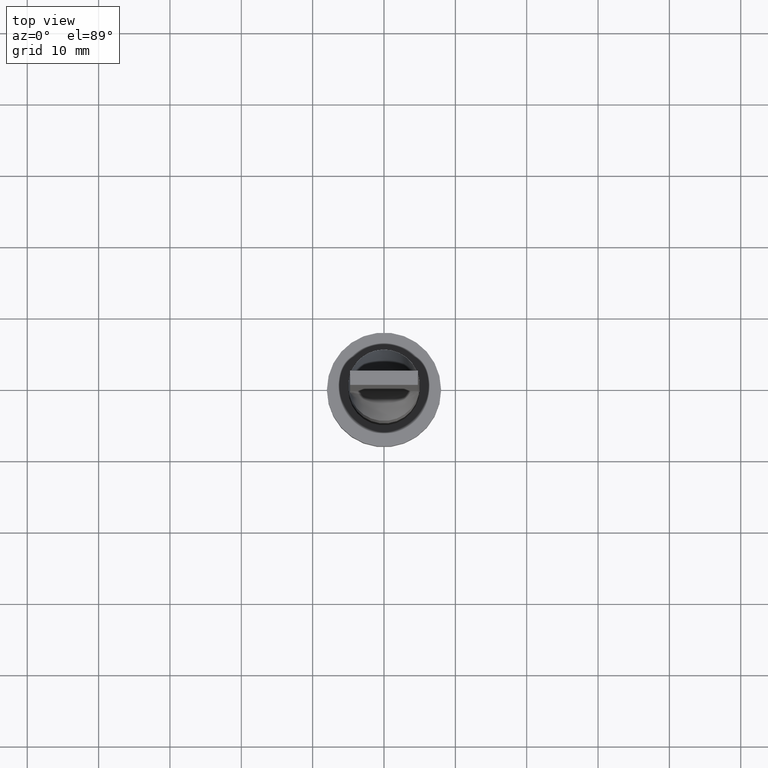
[diagram: clean part render]
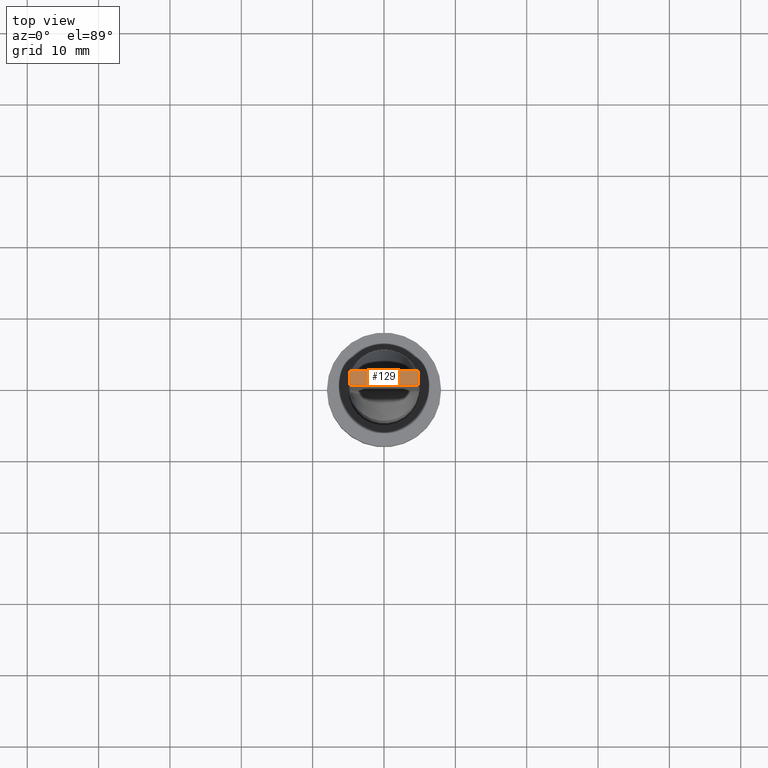
[diagram: same view with one face highlighted and labeled with its STEP entity id]
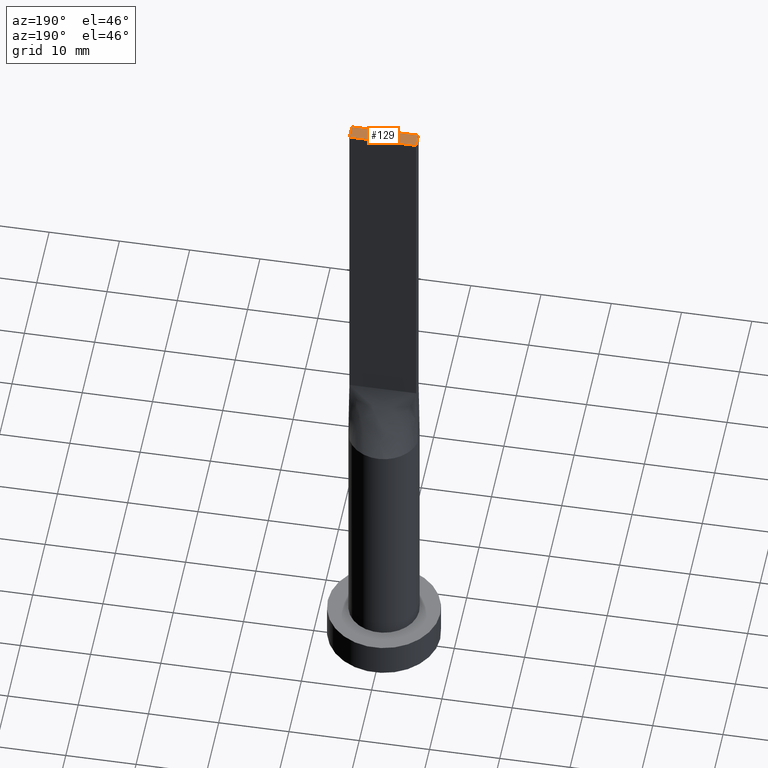
[diagram: same view with one face highlighted and labeled with its STEP entity id]
A machine part, top view. The second image highlights one B-rep face of the part: STEP entity #129.
A second angle (auxiliary view) of the same face is appended — the face is thin or edge-on in the first view.
In plain terms, the highlighted planar face has unit normal (0, 0, 1).
Its self-contained STEP definition (entity closure, byte-faithful):
#15 = DIRECTION ( 'NONE',  ( 0.000000000000000000, -1.000000000000000000, 0.000000000000000000 ) ) ;
#26 = VERTEX_POINT ( 'NONE', #459 ) ;
#32 = EDGE_CURVE ( 'NONE', #26, #68, #359, .T. ) ;
#40 = DIRECTION ( 'NONE',  ( 0.000000000000000000, 0.000000000000000000, 1.000000000000000000 ) ) ;
#45 = ORIENTED_EDGE ( 'NONE', *, *, #82, .T. ) ;
#59 = LINE ( 'NONE', #482, #440 ) ;
#68 = VERTEX_POINT ( 'NONE', #457 ) ;
#78 = VERTEX_POINT ( 'NONE', #181 ) ;
#82 = EDGE_CURVE ( 'NONE', #68, #196, #411, .T. ) ;
#115 = CARTESIAN_POINT ( 'NONE',  ( -4.750000000000000000, -0.9999999999999991118, 100.0000000000000000 ) ) ;
#125 = EDGE_LOOP ( 'NONE', ( #45, #259, #468, #308 ) ) ;
#128 = DIRECTION ( 'NONE',  ( 0.000000000000000000, 1.000000000000000000, 0.000000000000000000 ) ) ;
#129 = ADVANCED_FACE ( 'NONE', ( #462 ), #222, .T. ) ;
#160 = LINE ( 'NONE', #115, #465 ) ;
#177 = CARTESIAN_POINT ( 'NONE',  ( 4.750000000000000000, -0.9999999999999997780, 100.0000000000000000 ) ) ;
#181 = CARTESIAN_POINT ( 'NONE',  ( -4.750000000000000000, -0.9999999999999991118, 100.0000000000000000 ) ) ;
#194 = DIRECTION ( 'NONE',  ( 1.000000000000000000, 0.000000000000000000, -0.000000000000000000 ) ) ;
#196 = VERTEX_POINT ( 'NONE', #597 ) ;
#222 = PLANE ( 'NONE',  #511 ) ;
#259 = ORIENTED_EDGE ( 'NONE', *, *, #353, .T. ) ;
#277 = EDGE_CURVE ( 'NONE', #78, #26, #160, .T. ) ;
#285 = DIRECTION ( 'NONE',  ( -1.000000000000000000, 0.000000000000000000, 0.000000000000000000 ) ) ;
#303 = DIRECTION ( 'NONE',  ( 1.000000000000000000, -6.847592668329501559E-17, 0.000000000000000000 ) ) ;
#308 = ORIENTED_EDGE ( 'NONE', *, *, #32, .T. ) ;
#340 = VECTOR ( 'NONE', #128, 1000.000000000000000 ) ;
#353 = EDGE_CURVE ( 'NONE', #196, #78, #59, .T. ) ;
#355 = VECTOR ( 'NONE', #285, 1000.000000000000000 ) ;
#359 = LINE ( 'NONE', #177, #340 ) ;
#362 = CARTESIAN_POINT ( 'NONE',  ( 4.750000000000000000, 1.000000000000000000, 100.0000000000000000 ) ) ;
#408 = CARTESIAN_POINT ( 'NONE',  ( 0.000000000000000000, 0.000000000000000000, 100.0000000000000000 ) ) ;
#411 = LINE ( 'NONE', #362, #355 ) ;
#440 = VECTOR ( 'NONE', #15, 1000.000000000000000 ) ;
#457 = CARTESIAN_POINT ( 'NONE',  ( 4.750000000000000000, 1.000000000000000000, 100.0000000000000000 ) ) ;
#459 = CARTESIAN_POINT ( 'NONE',  ( 4.750000000000000000, -0.9999999999999997780, 100.0000000000000000 ) ) ;
#462 = FACE_OUTER_BOUND ( 'NONE', #125, .T. ) ;
#465 = VECTOR ( 'NONE', #303, 1000.000000000000000 ) ;
#468 = ORIENTED_EDGE ( 'NONE', *, *, #277, .T. ) ;
#482 = CARTESIAN_POINT ( 'NONE',  ( -4.750000000000000000, 1.000000000000000000, 100.0000000000000000 ) ) ;
#511 = AXIS2_PLACEMENT_3D ( 'NONE', #408, #40, #194 ) ;
#597 = CARTESIAN_POINT ( 'NONE',  ( -4.750000000000000000, 1.000000000000000000, 100.0000000000000000 ) ) ;